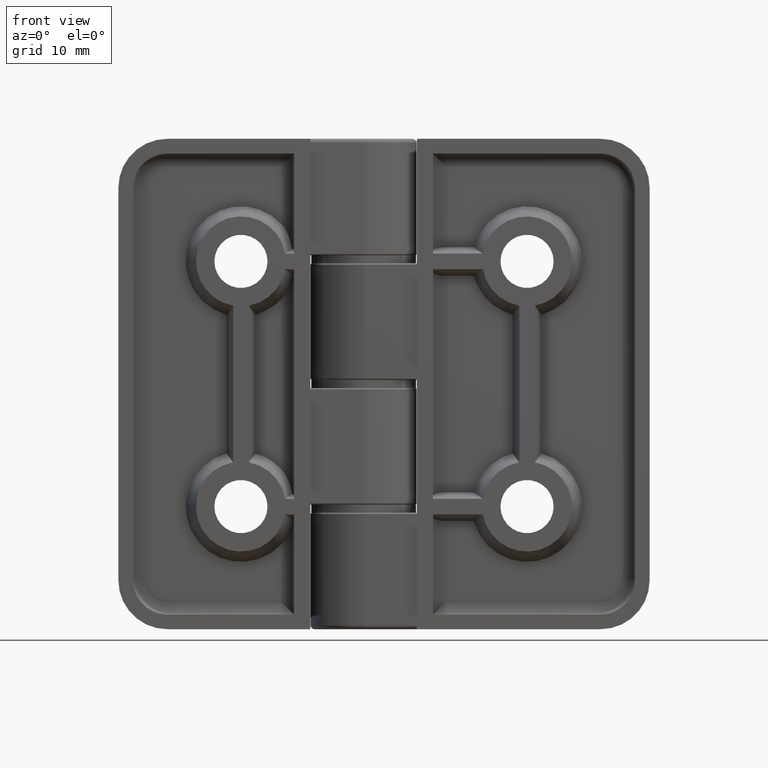
[diagram: clean part render]
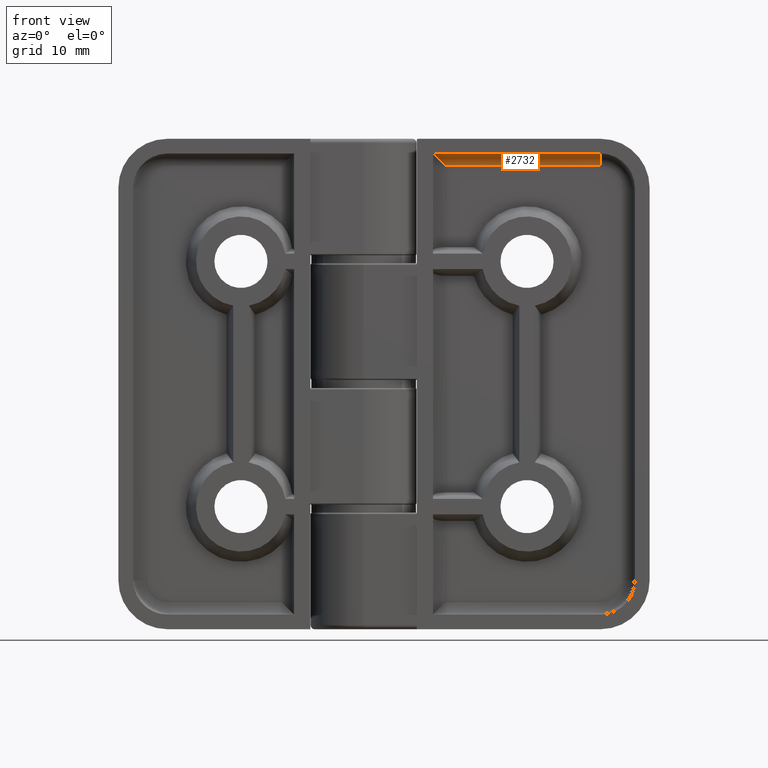
[diagram: same view with one face highlighted and labeled with its STEP entity id]
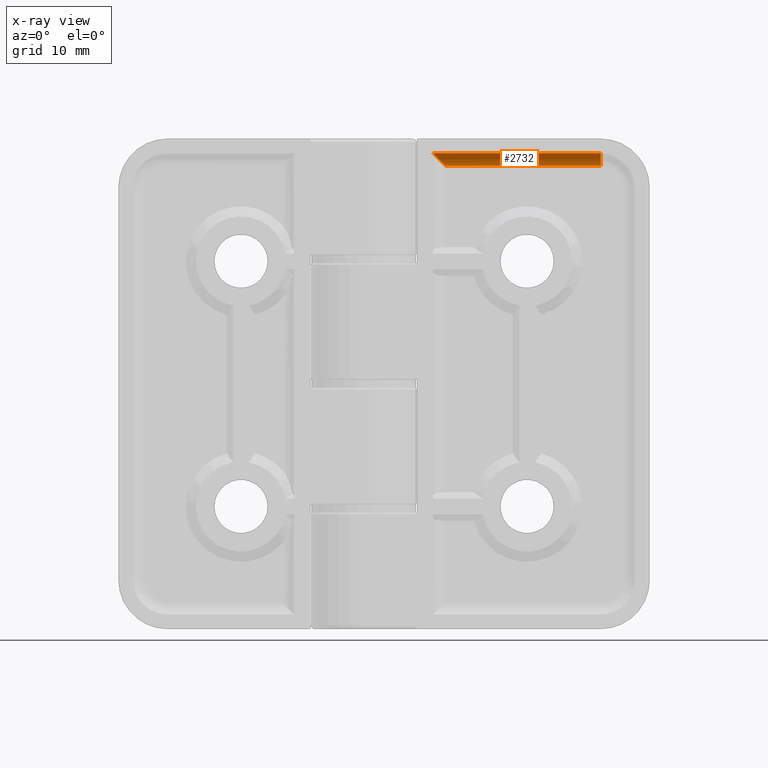
[diagram: x-ray of the same camera — body ghosted, the highlighted face saturated]
A machine part, front view. The second image highlights one B-rep face of the part: STEP entity #2732.
The next image is the same camera in x-ray: the body ghosted, the highlighted face saturated — about 0% of this face is hidden behind the body in this view.
In plain terms, the highlighted cylindrical surface (edge-blend (fillet) strip) has radius 1.5 mm, axis along (1, 0, 0).
Its self-contained STEP definition (entity closure, byte-faithful):
#279=CIRCLE('',#3009,1.5);
#462=FACE_OUTER_BOUND('',#652,.T.);
#652=EDGE_LOOP('',(#2253,#2254,#2255,#2256));
#895=LINE('',#5150,#1073);
#896=LINE('',#5153,#1074);
#1073=VECTOR('',#3672,19.);
#1074=VECTOR('',#3675,20.5);
#1137=ELLIPSE('',#3007,2.12132034355964,1.5);
#1318=VERTEX_POINT('',#5140);
#1321=VERTEX_POINT('',#5145);
#1322=VERTEX_POINT('',#5149);
#1323=VERTEX_POINT('',#5151);
#1653=EDGE_CURVE('',#1321,#1318,#1137,.T.);
#1654=EDGE_CURVE('',#1321,#1322,#895,.T.);
#1655=EDGE_CURVE('',#1322,#1323,#279,.T.);
#1656=EDGE_CURVE('',#1323,#1318,#896,.T.);
#2253=ORIENTED_EDGE('',*,*,#1654,.T.);
#2254=ORIENTED_EDGE('',*,*,#1655,.T.);
#2255=ORIENTED_EDGE('',*,*,#1656,.T.);
#2256=ORIENTED_EDGE('',*,*,#1653,.F.);
#2609=CYLINDRICAL_SURFACE('',#3008,1.5);
#2732=ADVANCED_FACE('',(#462),#2609,.F.);
#3007=AXIS2_PLACEMENT_3D('',#5147,#3668,#3669);
#3008=AXIS2_PLACEMENT_3D('',#5148,#3670,#3671);
#3009=AXIS2_PLACEMENT_3D('',#5152,#3673,#3674);
#3668=DIRECTION('center_axis',(-0.707106781186546,2.09345661157837E-15,
-0.707106781186549));
#3669=DIRECTION('ref_axis',(-0.707106781186549,2.09345661157838E-15,0.707106781186546));
#3670=DIRECTION('center_axis',(-1.,-4.44089209850063E-16,-1.218537466052E-16));
#3671=DIRECTION('ref_axis',(-2.27854881199232E-16,0.707106781186549,-0.707106781186546));
#3672=DIRECTION('',(-1.,-4.44089209850063E-16,-1.218537466052E-16));
#3673=DIRECTION('center_axis',(-1.,0.,0.));
#3674=DIRECTION('ref_axis',(0.,1.,0.));
#3675=DIRECTION('',(1.,4.44089209850063E-16,1.218537466052E-16));
#5140=CARTESIAN_POINT('',(-8.5,-5.5,-28.2));
#5145=CARTESIAN_POINT('',(-10.,-4.,-26.7));
#5147=CARTESIAN_POINT('Origin',(-10.,-5.5,-26.7));
#5148=CARTESIAN_POINT('Origin',(-14.4086459408213,-5.50000000000001,-26.7));
#5149=CARTESIAN_POINT('',(-29.,-4.00000000000001,-26.7));
#5150=CARTESIAN_POINT('',(-14.4086459408213,-4.00000000000001,-26.7));
#5151=CARTESIAN_POINT('',(-29.,-5.50000000000001,-28.2));
#5152=CARTESIAN_POINT('Origin',(-29.,-5.50000000000001,-26.7));
#5153=CARTESIAN_POINT('',(-14.4086459408213,-5.50000000000001,-28.2));